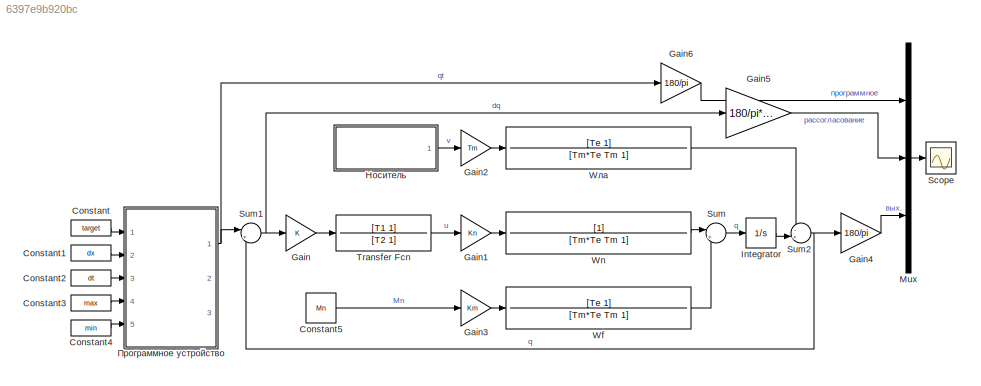
MODEL slx_6397e9b920bc
KIND model
CONFIG AbsTol = auto
CONFIG EnableMultiTasking = off
CONFIG FixedStep = auto
CONFIG MaxStep = auto
CONFIG MinStep = auto
CONFIG RelTol = 1e-3
CONFIG SampleTimeConstraint = Unconstrained
CONFIG Solver = VariableStepAuto
CONFIG SolverName = VariableStepAuto
CONFIG StartTime = 0.0
CONFIG StopTime = 0.7
WORKSPACE source: mxarray member
WORKSPACE A1 = 0.209333333333
WORKSPACE A2 = 0.0330526315789
WORKSPACE K = 324.324324324
WORKSPACE Km = 3.29
WORKSPACE Kn = 3.7
WORKSPACE Mn = 2.14
WORKSPACE T1 = 1.08
WORKSPACE T2 = 0.0001
WORKSPACE Te = 0.1
WORKSPACE Tm = 1.08
WORKSPACE dt = 0.6
WORKSPACE dx = 3.14
WORKSPACE max = 3.14
WORKSPACE min = -3.14
WORKSPACE omega1 = 1.005
WORKSPACE omega2 = 6.28
WORKSPACE target = 3.14
WORKSPACE w = 0.209333333333
BLOCK [Constant] Constant
  Value = target
BLOCK [Constant] Constant1
  Value = dx
BLOCK [Constant] Constant2
  Value = dt
BLOCK [Constant] Constant3
  Value = max
BLOCK [Constant] Constant4
  Value = min
BLOCK [Constant] Constant5
  Value = Mn
BLOCK [Gain] Gain
  Gain = K
BLOCK [Gain] Gain1
  Gain = Kn
BLOCK [Gain] Gain2
  Gain = Tm
BLOCK [Gain] Gain3
  Gain = Km
BLOCK [Gain] Gain4
  Gain = 180/pi
BLOCK [Gain] Gain5
  Gain = 180/pi*60
BLOCK [Gain] Gain6
  Gain = 180/pi
BLOCK [Integrator] Integrator
  Ports = [1, 1]
BLOCK [Mux] Mux
  DisplayOption = bar
  Inputs = 3
  Ports = [3, 1]
BLOCK [Scope] Scope
  Floating = off
  NumInputPorts = 1
  Ports = [1]
  ScopeSpecificationString = Simulink.scopes.TimeScopeBlockCfg('CurrentConfiguration', extmgr.ConfigurationSet(extmgr.Configuration('Core','General UI',true,'FigureColor',[1 1 1]),extmgr.Configuration('Core','Source UI',true),extmgr.Configuration('Sources','WiredSimulink',true),extmgr.Configuration('Visuals','Time Domain',true,'SerializedDisplays',{struct('MinYLimReal','-41.89481','MaxYLimReal','204.10913','YLabelReal','','Mi...<+1941ch>
BLOCK [Sum] Sum
  Inputs = |+-
  Ports = [2, 1]
BLOCK [Sum] Sum1
  Inputs = |+-
  Ports = [2, 1]
BLOCK [Sum] Sum2
  Inputs = -+|
  Ports = [2, 1]
BLOCK [TransferFcn] Transfer Fcn
  Denominator = [T2 1]
  Numerator = [T1 1]
BLOCK [TransferFcn] Wf
  Denominator = [Tm*Te Tm 1]
  Numerator = [Te 1]
BLOCK [TransferFcn] Wn 
  Denominator = [Tm*Te Tm 1]
BLOCK [TransferFcn] Wла
  Denominator = [Tm*Te Tm 1]
  Numerator = [Te 1]
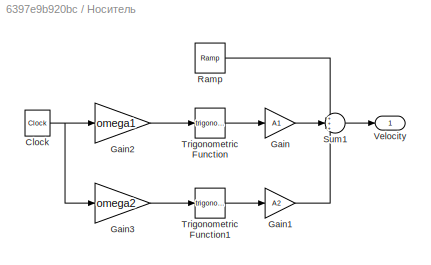
BLOCK [SubSystem] Носитель
  Ports = [0, 1]
  RequestExecContextInheritance = off
BLOCK [Clock] Носитель/Clock
BLOCK [Gain] Носитель/Gain
  Gain = A1
BLOCK [Gain] Носитель/Gain1
  Gain = A2
BLOCK [Gain] Носитель/Gain2
  Gain = omega1
BLOCK [Gain] Носитель/Gain3
  Gain = omega2
BLOCK [Reference] Носитель/Ramp  REF=simulink/Sources/Ramp
  Ports = [0, 1]
  SourceBlock = simulink/Sources/Ramp
  SourceProductBaseCode = SL
  SourceType = Ramp
BLOCK [Sum] Носитель/Sum1
  Inputs = +++
  Ports = [3, 1]
BLOCK [Trigonometry] Носитель/Trigonometric Function
  Ports = [1, 1]
BLOCK [Trigonometry] Носитель/Trigonometric Function1
  Ports = [1, 1]
BLOCK [Outport] Носитель/Velocity
  VectorParamsAs1DForOutWhenUnconnected = off
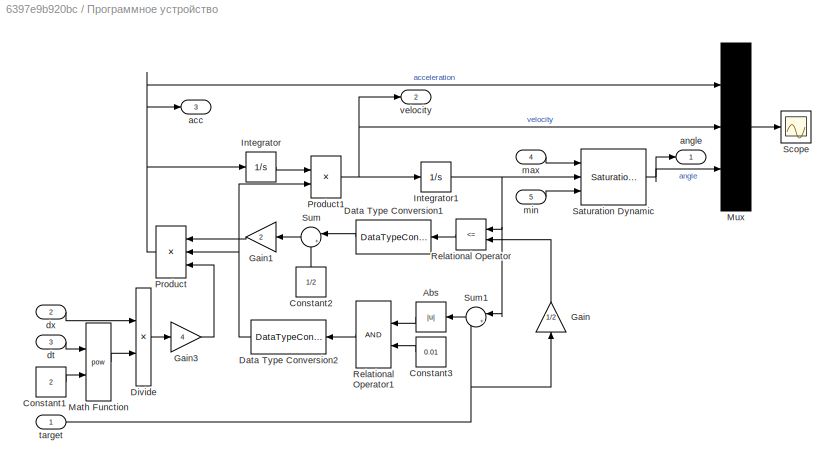
BLOCK [SubSystem] Программное устройство
  Ports = [5, 3]
  RequestExecContextInheritance = off
BLOCK [Abs] Программное устройство/Abs
  SaturateOnIntegerOverflow = off
BLOCK [Constant] Программное устройство/Constant1
  Value = 2
BLOCK [Constant] Программное устройство/Constant2
  NameLocation = right
  Value = 1/2
BLOCK [Constant] Программное устройство/Constant3
  Value = 0.01
BLOCK [DataTypeConversion] Программное устройство/Data Type Conversion1
  RndMeth = Floor
  SaturateOnIntegerOverflow = off
BLOCK [DataTypeConversion] Программное устройство/Data Type Conversion2
  RndMeth = Floor
  SaturateOnIntegerOverflow = off
BLOCK [Product] Программное устройство/Divide
  Inputs = */
  Ports = [2, 1]
BLOCK [Gain] Программное устройство/Gain
  Gain = 1/2
  NameLocation = left
BLOCK [Gain] Программное устройство/Gain1
  Gain = 2
BLOCK [Gain] Программное устройство/Gain3
  Gain = 4
BLOCK [Integrator] Программное устройство/Integrator
  Ports = [1, 1]
BLOCK [Integrator] Программное устройство/Integrator1
  Ports = [1, 1]
BLOCK [Math] Программное устройство/Math Function
  Operator = pow
  Ports = [2, 1]
  SignedPower = on
BLOCK [Mux] Программное устройство/Mux
  DisplayOption = bar
  Inputs = 3
  Ports = [3, 1]
BLOCK [Product] Программное устройство/Product
  Inputs = 3
  Ports = [3, 1]
BLOCK [Product] Программное устройство/Product1
  Ports = [2, 1]
BLOCK [RelationalOperator] Программное устройство/Relational Operator
  InputSameDT = off
  Operator = <=
  OutDataTypeStr = boolean
  Ports = [2, 1]
  RndMeth = Simplest
BLOCK [RelationalOperator] Программное устройство/Relational Operator1
  InputSameDT = off
  OutDataTypeStr = boolean
  Ports = [2, 1]
  RndMeth = Simplest
BLOCK [Reference] Программное устройство/Saturation Dynamic  REF=simulink/Discontinuities/Saturation
Dynamic
  Ports = [3, 1]
  SourceBlock = simulink/Discontinuities/Saturation\nDynamic
  SourceProductBaseCode = SL
  SourceType = Saturation Dynamic
BLOCK [Scope] Программное устройство/Scope
  Floating = off
  NumInputPorts = 1
  Ports = [1]
  ScopeSpecificationString = Simulink.scopes.TimeScopeBlockCfg('CurrentConfiguration', extmgr.ConfigurationSet(extmgr.Configuration('Core','General UI',true,'FigureColor',[0 0 0]),extmgr.Configuration('Core','Source UI',true),extmgr.Configuration('Sources','WiredSimulink',true,'DataLoggingVariableName','ScopeData1'),extmgr.Configuration('Visuals','Time Domain',true,'SerializedDisplays',{struct('MinYLimReal','-1250.00000','Max...<+1621ch>
BLOCK [Sum] Программное устройство/Sum
  Inputs = |+-
  Ports = [2, 1]
BLOCK [Sum] Программное устройство/Sum1
  Inputs = |+-
  NameLocation = top
  Ports = [2, 1]
BLOCK [Outport] Программное устройство/acc
  Port = 3
  VectorParamsAs1DForOutWhenUnconnected = off
BLOCK [Outport] Программное устройство/angle
  VectorParamsAs1DForOutWhenUnconnected = off
BLOCK [Inport] Программное устройство/dt
  Port = 3
BLOCK [Inport] Программное устройство/dx 
  Port = 2
BLOCK [Inport] Программное устройство/max
  Port = 4
BLOCK [Inport] Программное устройство/min
  Port = 5
BLOCK [Inport] Программное устройство/target
BLOCK [Outport] Программное устройство/velocity
  Port = 2
  VectorParamsAs1DForOutWhenUnconnected = off
LINE Constant1:1 -> Программное устройство:2
LINE Constant2:1 -> Программное устройство:3
LINE Constant3:1 -> Программное устройство:4
LINE Constant4:1 -> Программное устройство:5
LINE Constant5:1 -> Gain3:1
LINE Constant:1 -> Программное устройство:1
LINE Gain1:1 -> Wn :1
LINE Gain2:1 -> Wла:1
LINE Gain3:1 -> Wf:1
LINE Gain4:1 -> Mux:3
LINE Gain5:1 -> Mux:2
LINE Gain6:1 -> Mux:1
LINE Gain:1 -> Transfer Fcn:1
LINE Integrator:1 -> Sum2:2
LINE Mux:1 -> Scope:1
NET Sum1:1 -> Gain5:1, Gain:1
NET Sum2:1 -> Gain4:1, Sum1:2
LINE Sum:1 -> Integrator:1
LINE Transfer Fcn:1 -> Gain1:1
LINE Wf:1 -> Sum:2
LINE Wn :1 -> Sum:1
LINE Wла:1 -> Sum2:1
NET Носитель/Clock:1 -> Носитель/Gain2:1, Носитель/Gain3:1
LINE Носитель/Gain1:1 -> Носитель/Sum1:3
LINE Носитель/Gain2:1 -> Носитель/Trigonometric Function:1
LINE Носитель/Gain3:1 -> Носитель/Trigonometric Function1:1
LINE Носитель/Gain:1 -> Носитель/Sum1:2
LINE Носитель/Ramp:1 -> Носитель/Sum1:1
LINE Носитель/Sum1:1 -> Носитель/Velocity:1
LINE Носитель/Trigonometric Function1:1 -> Носитель/Gain1:1
LINE Носитель/Trigonometric Function:1 -> Носитель/Gain:1
LINE Носитель:1 -> Gain2:1
LINE Программное устройство/Abs:1 -> Программное устройство/Relational Operator1:1
LINE Программное устройство/Constant1:1 -> Программное устройство/Math Function:2
LINE Программное устройство/Constant2:1 -> Программное устройство/Sum:2
LINE Программное устройство/Constant3:1 -> Программное устройство/Relational Operator1:2
LINE Программное устройство/Data Type Conversion1:1 -> Программное устройство/Sum:1
NET Программное устройство/Data Type Conversion2:1 -> Программное устройство/Product1:2, Программное устройство/Product:2
LINE Программное устройство/Divide:1 -> Программное устройство/Gain3:1
LINE Программное устройство/Gain1:1 -> Программное устройство/Product:1
LINE Программное устройство/Gain3:1 -> Программное устройство/Product:3
LINE Программное устройство/Gain:1 -> Программное устройство/Relational Operator:2
NET Программное устройство/Integrator1:1 -> Программное устройство/Relational Operator:1, Программное устройство/Saturation Dynamic:2, Программное устройство/Sum1:1
LINE Программное устройство/Integrator:1 -> Программное устройство/Product1:1
LINE Программное устройство/Math Function:1 -> Программное устройство/Divide:2
LINE Программное устройство/Mux:1 -> Программное устройство/Scope:1
NET Программное устройство/Product1:1 -> Программное устройство/Integrator1:1, Программное устройство/Mux:2, Программное устройство/velocity:1
NET Программное устройство/Product:1 -> Программное устройство/Integrator:1, Программное устройство/Mux:1, Программное устройство/acc:1
LINE Программное устройство/Relational Operator1:1 -> Программное устройство/Data Type Conversion2:1
LINE Программное устройство/Relational Operator:1 -> Программное устройство/Data Type Conversion1:1
NET Программное устройство/Saturation Dynamic:1 -> Программное устройство/Mux:3, Программное устройство/angle:1
LINE Программное устройство/Sum1:1 -> Программное устройство/Abs:1
LINE Программное устройство/Sum:1 -> Программное устройство/Gain1:1
LINE Программное устройство/dt:1 -> Программное устройство/Math Function:1
LINE Программное устройство/dx :1 -> Программное устройство/Divide:1
LINE Программное устройство/max:1 -> Программное устройство/Saturation Dynamic:1
LINE Программное устройство/min:1 -> Программное устройство/Saturation Dynamic:3
NET Программное устройство/target:1 -> Программное устройство/Gain:1, Программное устройство/Sum1:2
NET Программное устройство:1 -> Gain6:1, Sum1:1
note: NET lines group one-source signal fan-out (src -> all destinations, sorted); 1:1 wires keep LINE
